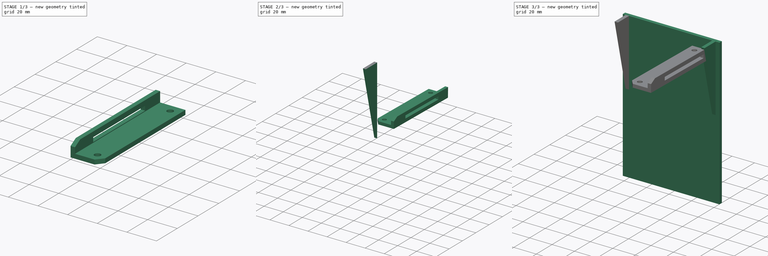
[diagram: build sequence overview — one tinted view per stage of 3, left to right]
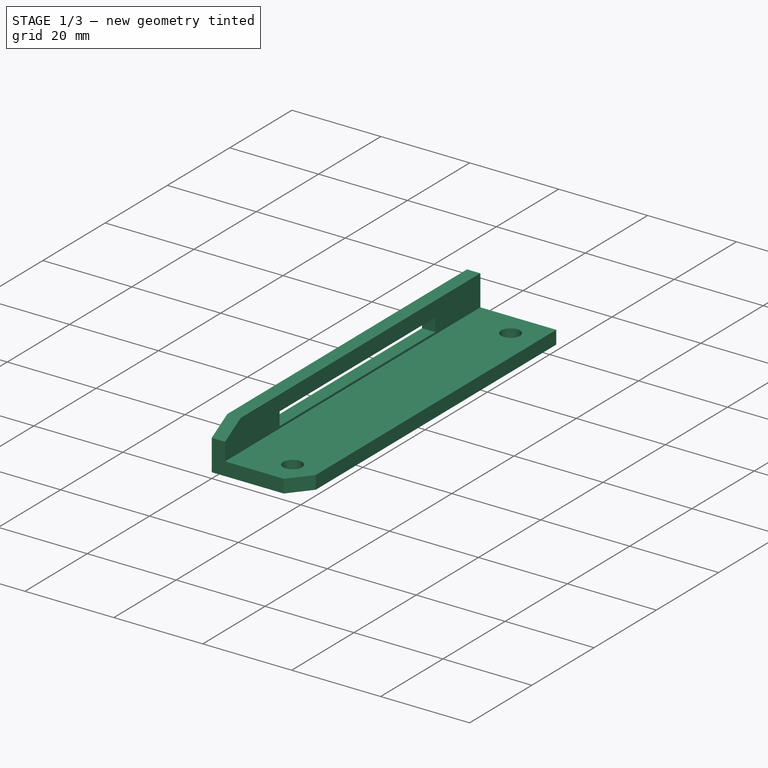
[diagram: stage 1 of 3 — iso view after this stage's code; geometry added in this stage tinted green]
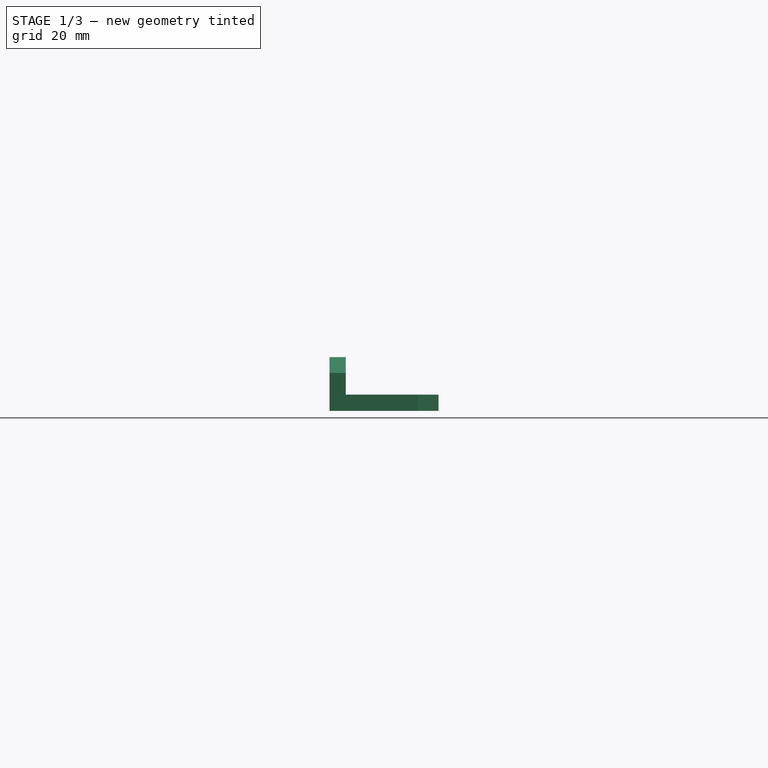
[diagram: stage 1 of 3 — front view after this stage's code; geometry added in this stage tinted green]
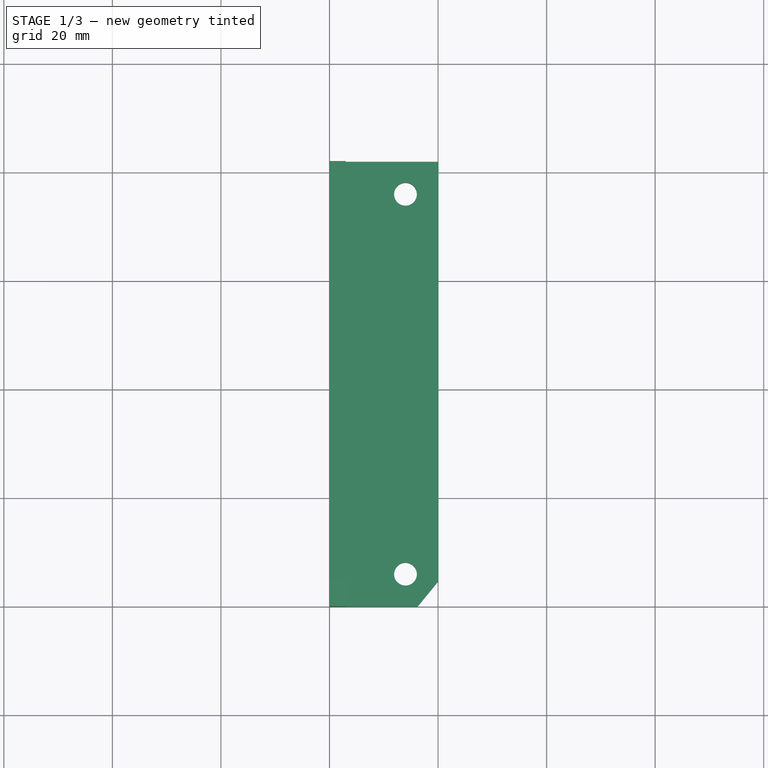
[diagram: stage 1 of 3 — top view after this stage's code; geometry added in this stage tinted green]
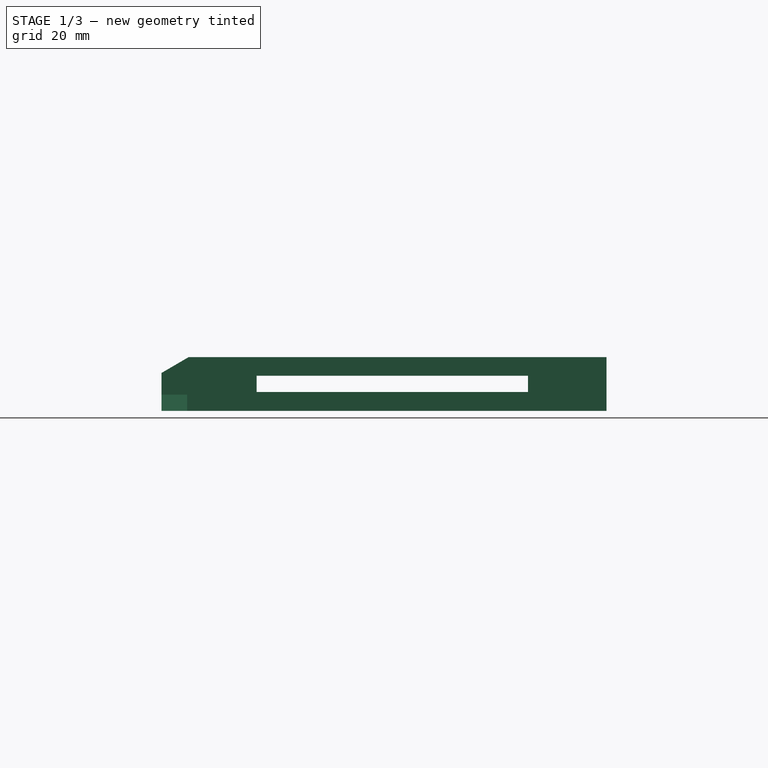
[diagram: stage 1 of 3 — right view after this stage's code; geometry added in this stage tinted green]
FCSTD DOCUMENT  (FreeCAD 0.16R6712 (Git))
Label: Enclosure_supports_updated
License: All rights reserved
LicenseURL: http://en.wikipedia.org/wiki/All_rights_reserved
objects: Sketcher::SketchObject×4, PartDesign::Pad×4, Part::MultiFuse×1, Part::Box×1, Part::Mirroring×1
note: 15 computed .brp shape members not serialized (recipe doc carries the construction recipe); baked Part::Feature solids carry a one-line shape summary decoded from their .brp

FEATURE [Sketcher::SketchObject] Sketch
  sketch-geometry (7):
    g0: LineSegment StartX=0 StartY=82 StartZ=0 EndX=0 EndY=0 EndZ=0
    g1: LineSegment StartX=20.0848 StartY=4.73419 StartZ=0 EndX=20.0848 EndY=82 EndZ=0
    g2: Circle CenterX=14 CenterY=6 CenterZ=0 NormalX=0 NormalY=0 NormalZ=1 Radius=2.1
    g3: Circle CenterX=14 CenterY=76 CenterZ=0 NormalX=0 NormalY=0 NormalZ=1 Radius=2.1
    g4: LineSegment StartX=0 StartY=0 StartZ=0 EndX=16.1965 EndY=0 EndZ=0
    g5: LineSegment StartX=16.1965 StartY=0 StartZ=0 EndX=20.0848 EndY=4.73419 EndZ=0
    g6: LineSegment StartX=0 StartY=82 StartZ=0 EndX=20.0848 EndY=82 EndZ=0
  constraints (17):
    c: PointOnObject(g0,g-2)
    c: Vertical(g0)
    c: Vertical(g1)
    c: Radius(g2) = 2.1
    c: Distance(g0) = 82
    c: Coincident(g-1,g0)
    c: Distance(g3,g2) = 70
    c: Horizontal(g4)
    c: Coincident(g4,g5)
    c: Coincident(g5,g1)
    c: Coincident(g4,g-1)
    c: Coincident(g0,g6)
    c: Horizontal(g6)
    c: Distance(g3,g0) = 14
    c: Distance(g2,g0) = 14
    c: Distance(g3,g6) = 6
    c: Coincident(g6,g1)
FEATURE [PartDesign::Pad] Pad
  Length = 3
  Length2 = 100
  Sketch = -> Sketch
  Type = 0
FEATURE [Sketcher::SketchObject] Sketch001
  Placement = pos=(0,0,0) rot=(0.57735,0.57735,0.57735;2.0944rad)
  sketch-geometry (9):
    g0: LineSegment StartX=0 StartY=0 StartZ=0 EndX=82 EndY=0 EndZ=0
    g1: LineSegment StartX=82 StartY=0 StartZ=0 EndX=82 EndY=9.91693 EndZ=0
    g2: LineSegment StartX=82 StartY=9.91693 StartZ=0 EndX=5.01217 EndY=9.91693 EndZ=0
    g3: LineSegment StartX=5.01217 StartY=9.91693 StartZ=0 EndX=0.002224 EndY=6.9898 EndZ=0
    g4: LineSegment StartX=0.002224 StartY=6.9898 StartZ=0 EndX=0 EndY=0 EndZ=0
    g5: LineSegment StartX=17.5338 StartY=3.48334 StartZ=0 EndX=67.5338 EndY=3.48334 EndZ=0
    g6: LineSegment StartX=67.5338 StartY=3.48334 StartZ=0 EndX=67.5338 EndY=6.48334 EndZ=0
    g7: LineSegment StartX=67.5338 StartY=6.48334 StartZ=0 EndX=17.5338 EndY=6.48334 EndZ=0
    g8: LineSegment StartX=17.5338 StartY=6.48334 StartZ=0 EndX=17.5338 EndY=3.48334 EndZ=0
  constraints (20):
    c: Coincident(g0,g1)
    c: Vertical(g1)
    c: Horizontal(g2)
    c: Coincident(g2,g3)
    c: Coincident(g3,g4)
    c: Coincident(g4,g0)
    c: Coincident(g5,g6)
    c: Coincident(g6,g7)
    c: Coincident(g7,g8)
    c: Coincident(g8,g5)
    c: Horizontal(g7)
    c: Vertical(g6)
    c: Vertical(g8)
    c: Parallel(g7,g0)
    c: Parallel(g0,g5)
    c: Coincident(g-1,g0)
    c: Distance(g0) = 82
    c: DistanceX(g7,g7) = 50
    c: DistanceY(g8,g8) = 3
    c: Coincident(g1,g2)
FEATURE [PartDesign::Pad] Pad001
  Length = 3
  Length2 = 100
  Placement = pos=(0,0,0) rot=(0.57735,0.57735,0.57735;2.0944rad)
  Sketch = -> Sketch001
  Type = 0
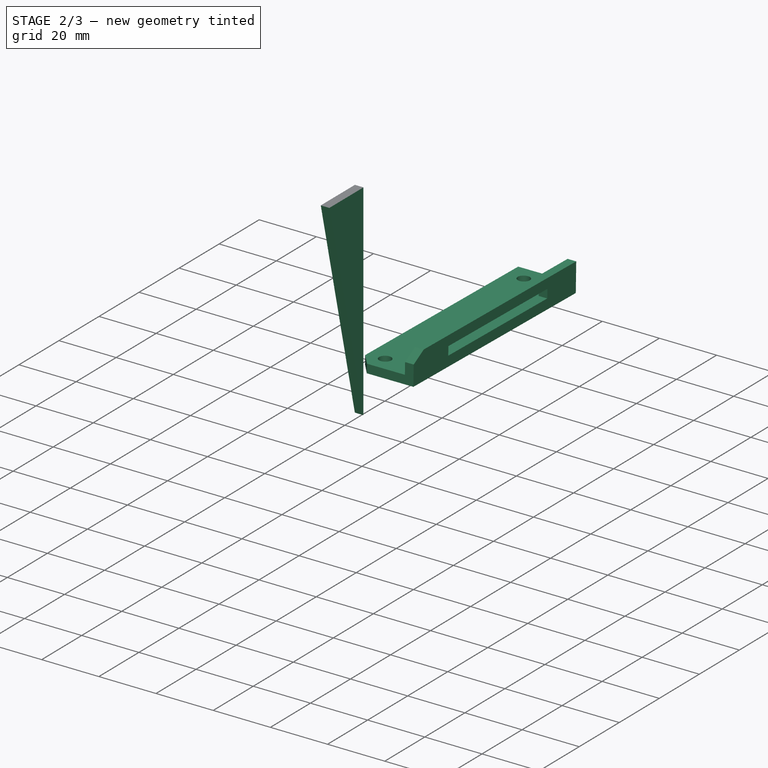
[diagram: stage 2 of 3 — iso view after this stage's code; geometry added in this stage tinted green]
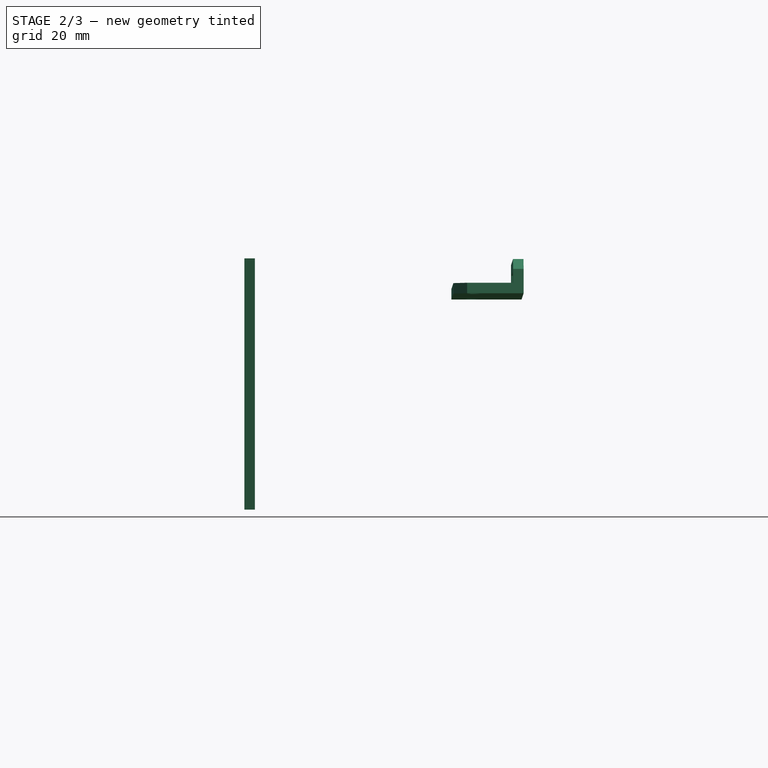
[diagram: stage 2 of 3 — front view after this stage's code; geometry added in this stage tinted green]
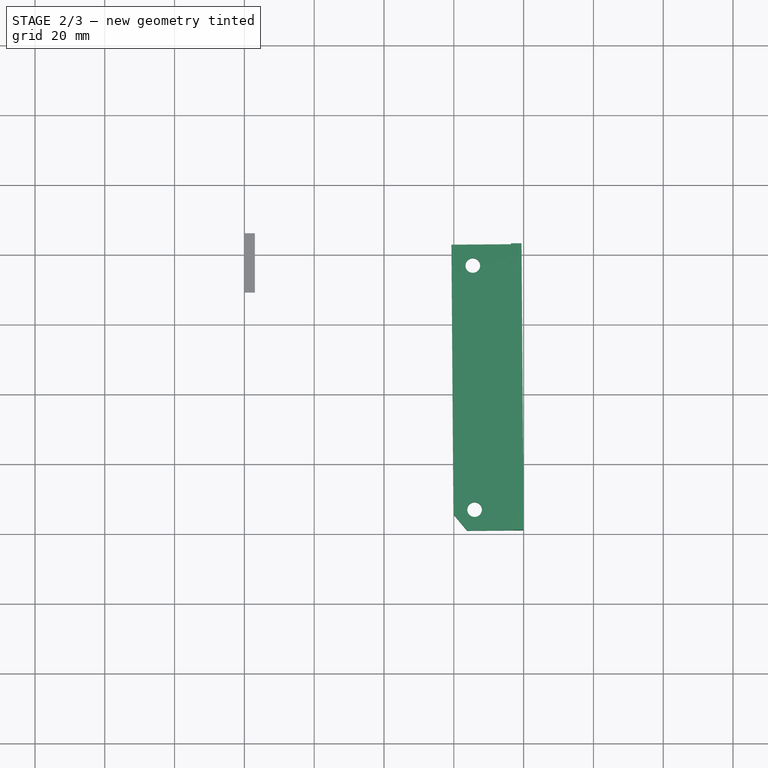
[diagram: stage 2 of 3 — top view after this stage's code; geometry added in this stage tinted green]
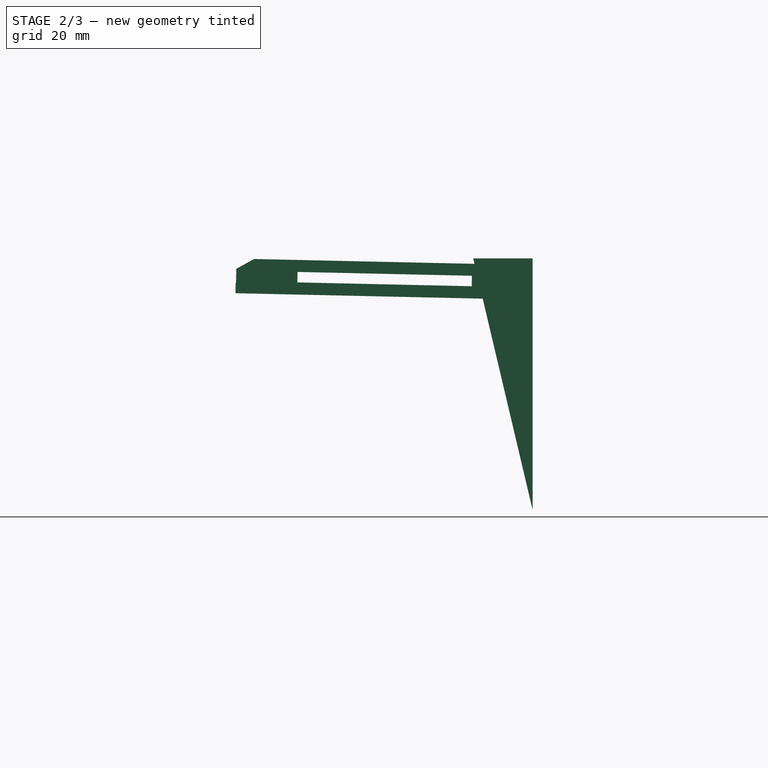
[diagram: stage 2 of 3 — right view after this stage's code; geometry added in this stage tinted green]
FEATURE [Part::MultiFuse] Fusion
  Placement = pos=(0,0,0) rot=(-0.948683,0,-0.316227;0.023135rad)
  Shapes = -> [Pad,Pad001]
FEATURE [Sketcher::SketchObject] Sketch003
  Placement = pos=(0,0,0) rot=(0.57735,0.57735,0.57735;2.0944rad)
  sketch-geometry (3):
    g0: LineSegment StartX=85.0126 StartY=9.99572 StartZ=0 EndX=85.0126 EndY=-62.0128 EndZ=0
    g1: LineSegment StartX=85.0126 StartY=-62.0128 StartZ=0 EndX=67.9966 EndY=9.99572 EndZ=0
    g2: LineSegment StartX=67.9966 StartY=9.99572 StartZ=0 EndX=85.0126 EndY=9.99572 EndZ=0
  constraints (5):
    c: Vertical(g0)
    c: Coincident(g0,g1)
    c: Coincident(g1,g2)
    c: Horizontal(g2)
    c: Coincident(g0,g2)
FEATURE [PartDesign::Pad] Pad003
  Length = 3
  Length2 = 100
  Placement = pos=(0,0,0) rot=(0.57735,0.57735,0.57735;2.0944rad)
  Sketch = -> Sketch003
  Type = 0
FEATURE [Part::Mirroring] Part__Mirroring  label="Fusion (Mirror #1)"
  Base = (0,0,0)
  Normal = (0,0,1)
  Placement = pos=(80,0,0) rot=(0,1,0;3.14159rad)
  Source = -> Fusion
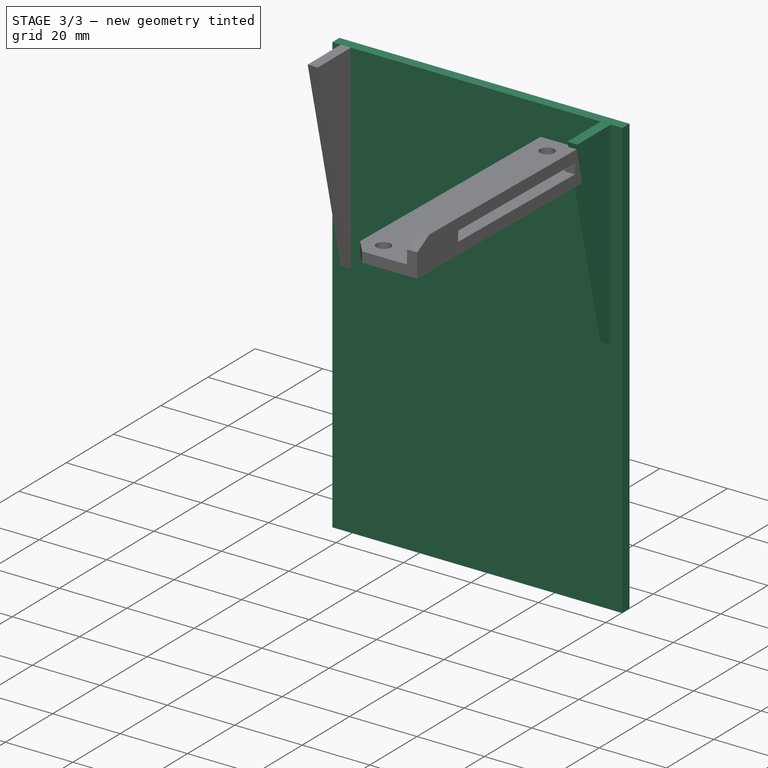
[diagram: stage 3 of 3 — iso view after this stage's code; geometry added in this stage tinted green]
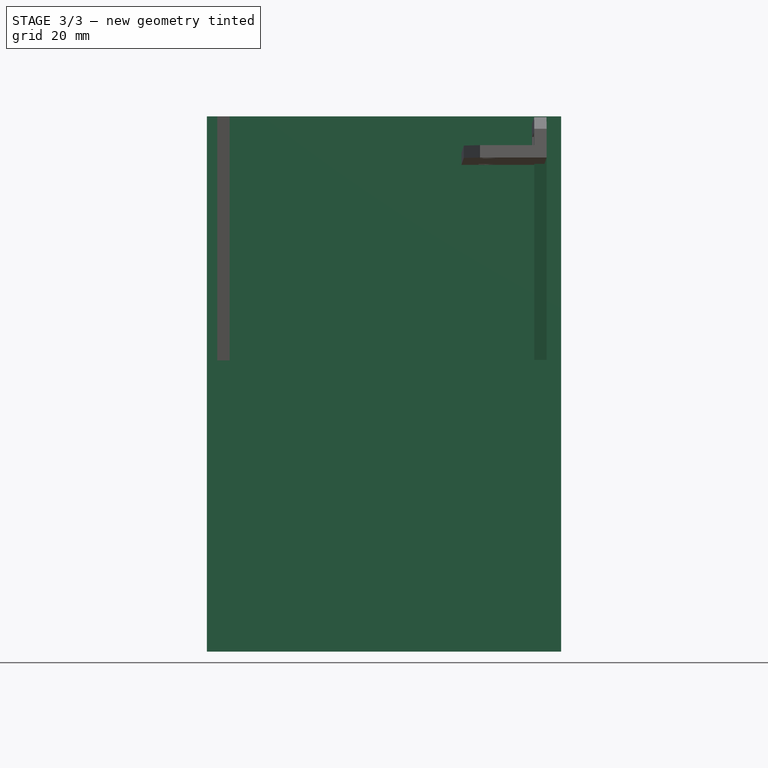
[diagram: stage 3 of 3 — front view after this stage's code; geometry added in this stage tinted green]
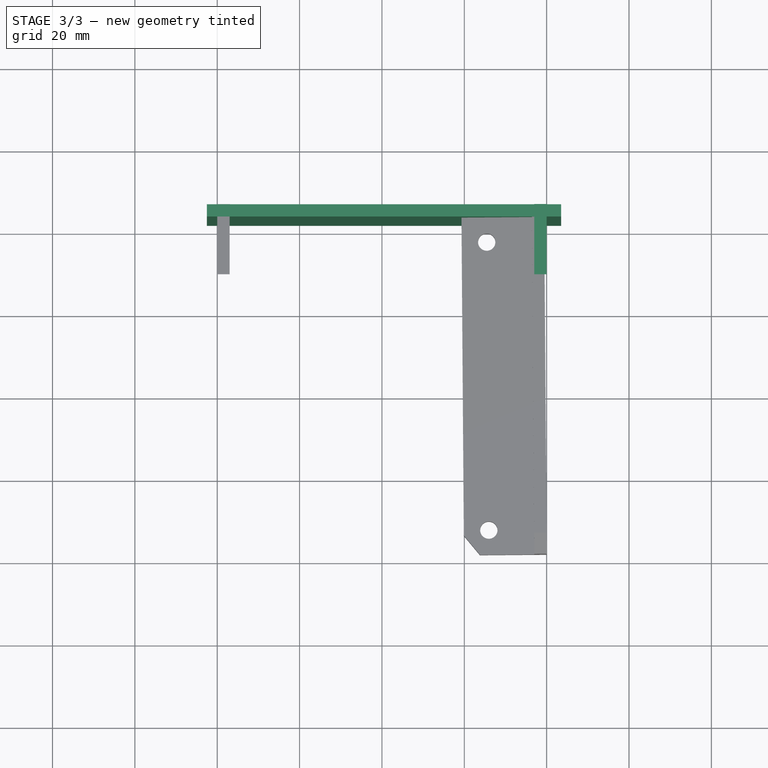
[diagram: stage 3 of 3 — top view after this stage's code; geometry added in this stage tinted green]
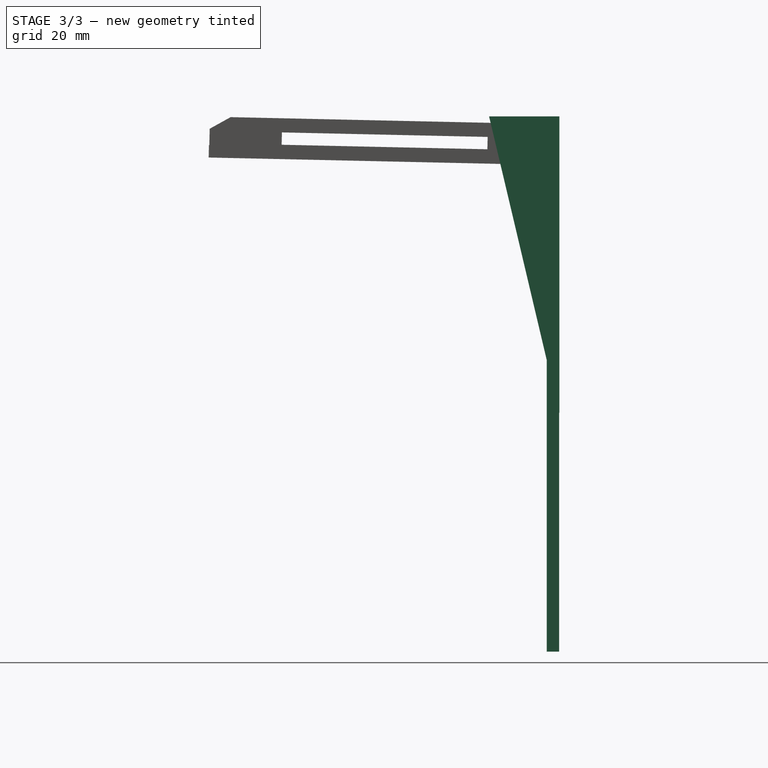
[diagram: stage 3 of 3 — right view after this stage's code; geometry added in this stage tinted green]
FEATURE [Part::Box] Box  label="Cube"
  Height = 130
  Length = 86
  Placement = pos=(-2.5,82,-120) rot=(0,0,1;0rad)
  Width = 3
FEATURE [Sketcher::SketchObject] Sketch002
  Placement = pos=(77,0,0) rot=(0.57735,0.57735,0.57735;2.0944rad)
  sketch-geometry (3):
    g0: LineSegment StartX=85.0473 StartY=9.95319 StartZ=0 EndX=67.9883 EndY=9.95319 EndZ=0
    g1: LineSegment StartX=67.9883 StartY=9.95319 StartZ=0 EndX=85.0473 EndY=-62.0018 EndZ=0
    g2: LineSegment StartX=85.0473 StartY=-62.0018 StartZ=0 EndX=85.0473 EndY=9.95319 EndZ=0
  constraints (5):
    c: Horizontal(g0)
    c: Coincident(g0,g1)
    c: Coincident(g1,g2)
    c: Coincident(g2,g0)
    c: Vertical(g2)
FEATURE [PartDesign::Pad] Pad002
  Length = 3
  Length2 = 100
  Placement = pos=(77,0,0) rot=(0.57735,0.57735,0.57735;2.0944rad)
  Sketch = -> Sketch002
  Type = 0
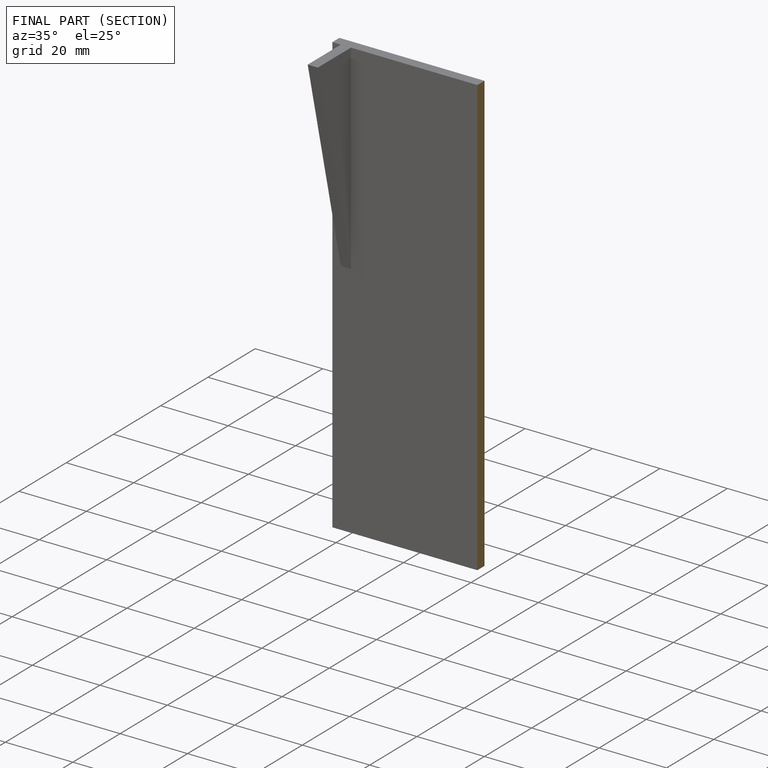
[diagram: finished part — half-section view (interior)]
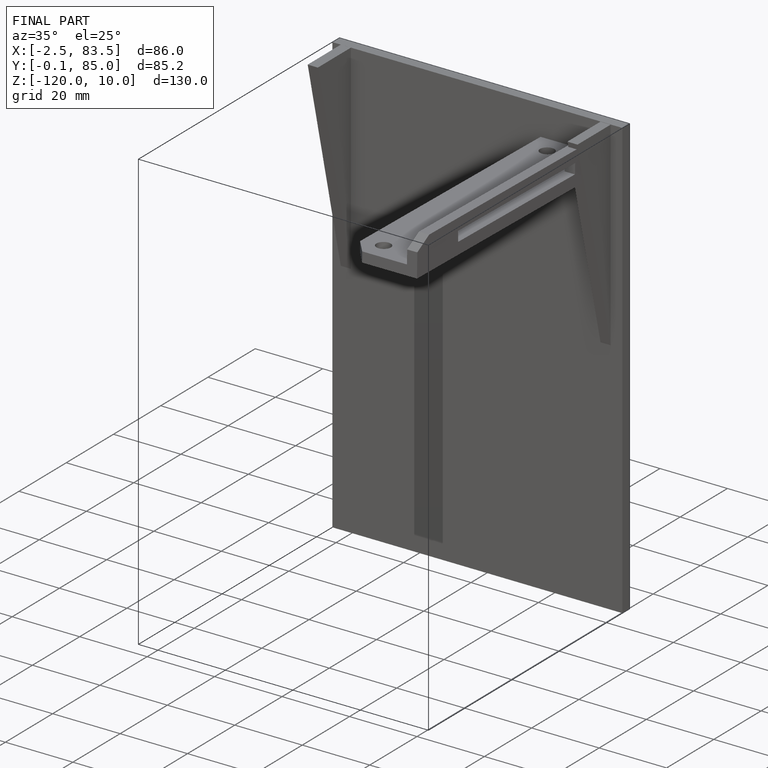
[diagram: finished part — iso view with bounding-box wireframe]
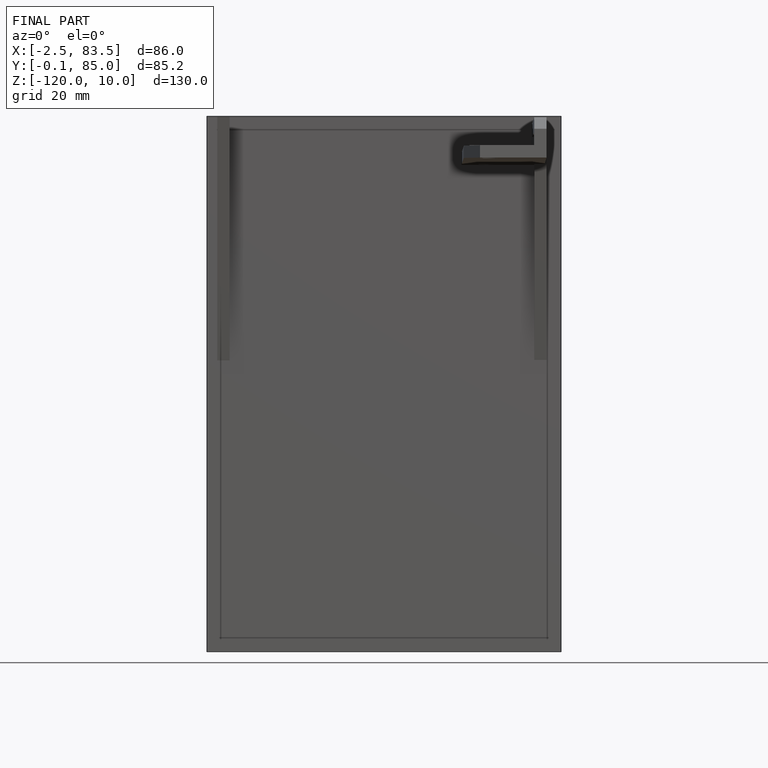
[diagram: finished part — front view with bounding-box wireframe]
